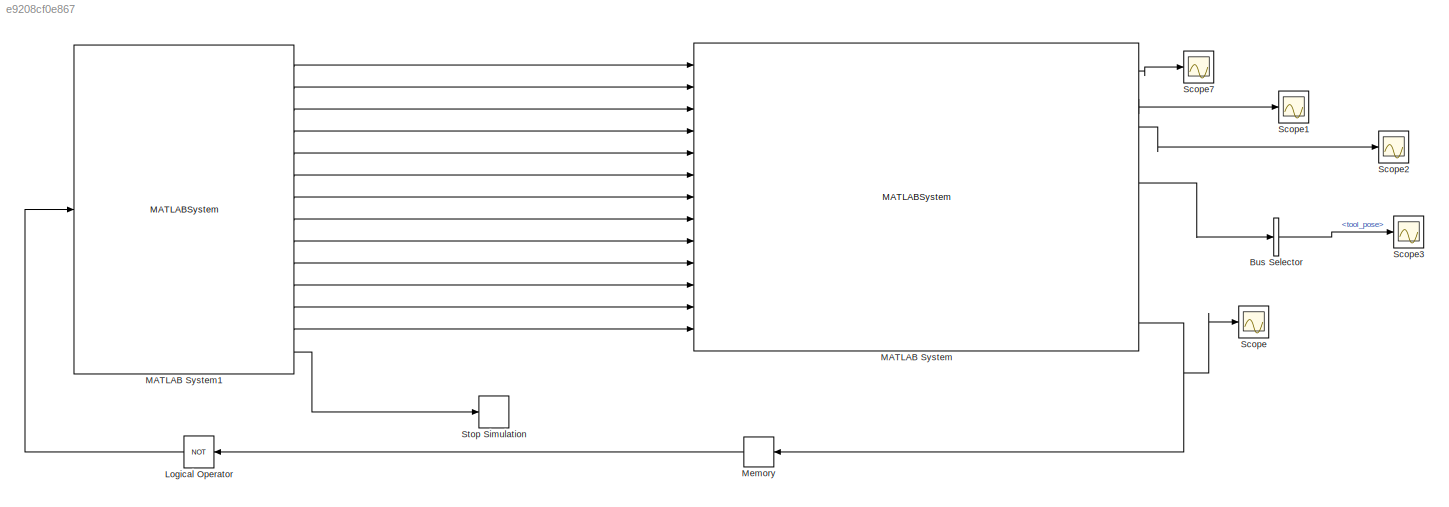
MODEL slx_e9208cf0e867
KIND model
CONFIG AbsTol = auto
CONFIG EnableMultiTasking = off
CONFIG FixedStep = 2
CONFIG MaxStep = auto
CONFIG MinStep = auto
CONFIG PreLoadFcn = CreateErrorBuses\nCreateCyclicFeedbackBuses\nCreateExtrinsicBuses\nCreateIntrinsicBuses\nCreateVisionConfigBuses\nSimulink.importExternalCTypes('include/kortex_wrapper_data.h');
CONFIG RelTol = 1e-3
CONFIG SampleTimeConstraint = Unconstrained
CONFIG Solver = FixedStepDiscrete
CONFIG SolverName = FixedStepDiscrete
CONFIG StartTime = 0.0
CONFIG StopTime = 4000
BLOCK [BusSelector] Bus Selector
  OutputAsBus = off
  OutputSignals = tool_pose
  Ports = [1, 1]
BLOCK [Logic] Logical Operator
  AllPortsSameDT = off
  Operator = NOT
  OutDataTypeStr = boolean
  Ports = [1, 1]
BLOCK [MATLABSystem] MATLAB System
  DialogController = sysobjdialog.BlockDynDialog
  MaskDisplay = disp('KORTEX Main');\nport_label('input',1,'cmdToProcess');\nport_label('input',2,'processCmdSignal');\nport_label('input',3,'precompute_trj_position');\nport_label('input',4,'precompute_trj_velocity');\nport_label('input',5,'precompute_trj_acceleration');\nport_label('input',6,'precompute_trj_timestamp');\nport_label('input',7,'precompute_count');\nport_label('input',8,'joint_constraint');\nport_label('in...<+593ch>
  MaskType = kortex
  Ports = [13, 10]
  SimulateUsing = Interpreted execution
  System = kortex
  hasVision = true
  ip_address = 10.0.101.184
  nbrJointActuators = 6
  nbrToolActuators = 0
  password = admin
  session_connection_timeout = 6000000
  session_ctrl_timeout = 1000000
  user = admin
BLOCK [MATLABSystem] MATLAB System1
  MaskDisplay = disp(['Trajectory' char(10) 'Feeder']);\nport_label('input',1,'is_ready');\nport_label('output',1,'cmdToProcess');\nport_label('output',2,'processCmdSignal');\nport_label('output',3,'precompute_trj_position');\nport_label('output',4,'precompute_trj_velocity');\nport_label('output',5,'precompute_trj_acceleration');\nport_label('output',6,'precompute_trj_timestamp');\nport_label('output',7,'precompute_count...<+294ch>
  MaskType = kObjTrajectoryFeeder
  Ports = [1, 14]
  SimulateUsing = Interpreted execution
  System = kObjTrajectoryFeeder
  nbrJointActuators = 6
BLOCK [Memory] Memory
  InitialCondition = false
BLOCK [Scope] Scope
  Floating = off
  NumInputPorts = 1
  Ports = [1]
  ScopeSpecificationString = Simulink.scopes.TimeScopeBlockCfg('CurrentConfiguration', extmgr.ConfigurationSet(extmgr.Configuration('Core','General UI',true),extmgr.Configuration('Core','Source UI',true),extmgr.Configuration('Sources','WiredSimulink',true,'DataLoggingVariableName','ScopeData1'),extmgr.Configuration('Visuals','Time Domain',true,'SerializedDisplays',{struct('MinYLimReal','-0.125','MaxYLimReal','1.125','YLabelRe...<+1414ch>
BLOCK [Scope] Scope1
  Floating = off
  NumInputPorts = 1
  Ports = [1]
  ScopeSpecificationString = Simulink.scopes.TimeScopeBlockCfg('CurrentConfiguration', extmgr.ConfigurationSet(extmgr.Configuration('Core','General UI',true),extmgr.Configuration('Core','Source UI',true),extmgr.Configuration('Sources','WiredSimulink',true,'DataLoggingVariableName','ScopeData1'),extmgr.Configuration('Visuals','Time Domain',true,'SerializedDisplays',{struct('MinYLimReal','-25.00000','MaxYLimReal','225.00000','Y...<+1437ch>
BLOCK [Scope] Scope2
  Floating = off
  NumInputPorts = 1
  Ports = [1]
  ScopeSpecificationString = Simulink.scopes.TimeScopeBlockCfg('CurrentConfiguration', extmgr.ConfigurationSet(extmgr.Configuration('Core','General UI',true),extmgr.Configuration('Core','Source UI',true),extmgr.Configuration('Sources','WiredSimulink',true,'DataLoggingVariableName','ScopeData2'),extmgr.Configuration('Visuals','Time Domain',true,'SerializedDisplays',{struct('MinYLimReal','-0.625','MaxYLimReal','5.625','YLabelRe...<+1412ch>
BLOCK [Scope] Scope3
  Floating = off
  NumInputPorts = 1
  Ports = [1]
  ScopeSpecificationString = Simulink.scopes.TimeScopeBlockCfg('CurrentConfiguration', extmgr.ConfigurationSet(extmgr.Configuration('Core','General UI',true),extmgr.Configuration('Core','Source UI',true),extmgr.Configuration('Sources','WiredSimulink',true,'DataLoggingVariableName','ScopeData1'),extmgr.Configuration('Visuals','Time Domain',true,'SerializedDisplays',{struct('MinYLimReal','-224.99988','MaxYLimReal','224.99905','...<+1519ch>
BLOCK [Scope] Scope7
  Floating = off
  NumInputPorts = 1
  Ports = [1]
  ScopeSpecificationString = Simulink.scopes.TimeScopeBlockCfg('CurrentConfiguration', extmgr.ConfigurationSet(extmgr.Configuration('Core','General UI',true),extmgr.Configuration('Core','Source UI',true),extmgr.Configuration('Sources','WiredSimulink',true,'DataLoggingVariableName','ScopeData3'),extmgr.Configuration('Visuals','Time Domain',true,'SerializedDisplays',{struct('MinYLimReal','-0.125','MaxYLimReal','1.125','YLabelRe...<+1413ch>
BLOCK [Stop] Stop Simulation
LINE Bus Selector:1 -> Scope3:1
LINE Logical Operator:1 -> MATLAB System1:1
LINE MATLAB System1:1 -> MATLAB System:1
LINE MATLAB System1:10 -> MATLAB System:10
LINE MATLAB System1:11 -> MATLAB System:11
LINE MATLAB System1:12 -> MATLAB System:12
LINE MATLAB System1:13 -> MATLAB System:13
LINE MATLAB System1:14 -> Stop Simulation:1
LINE MATLAB System1:2 -> MATLAB System:2
LINE MATLAB System1:3 -> MATLAB System:3
LINE MATLAB System1:4 -> MATLAB System:4
LINE MATLAB System1:5 -> MATLAB System:5
LINE MATLAB System1:6 -> MATLAB System:6
LINE MATLAB System1:7 -> MATLAB System:7
LINE MATLAB System1:8 -> MATLAB System:8
LINE MATLAB System1:9 -> MATLAB System:9
LINE MATLAB System:1 -> Scope7:1
NET MATLAB System:10 -> Memory:1, Scope:1
LINE MATLAB System:2 -> Scope1:1
LINE MATLAB System:3 -> Scope2:1
LINE MATLAB System:5 -> Bus Selector:1
LINE Memory:1 -> Logical Operator:1
note: NET lines group one-source signal fan-out (src -> all destinations, sorted); 1:1 wires keep LINE
